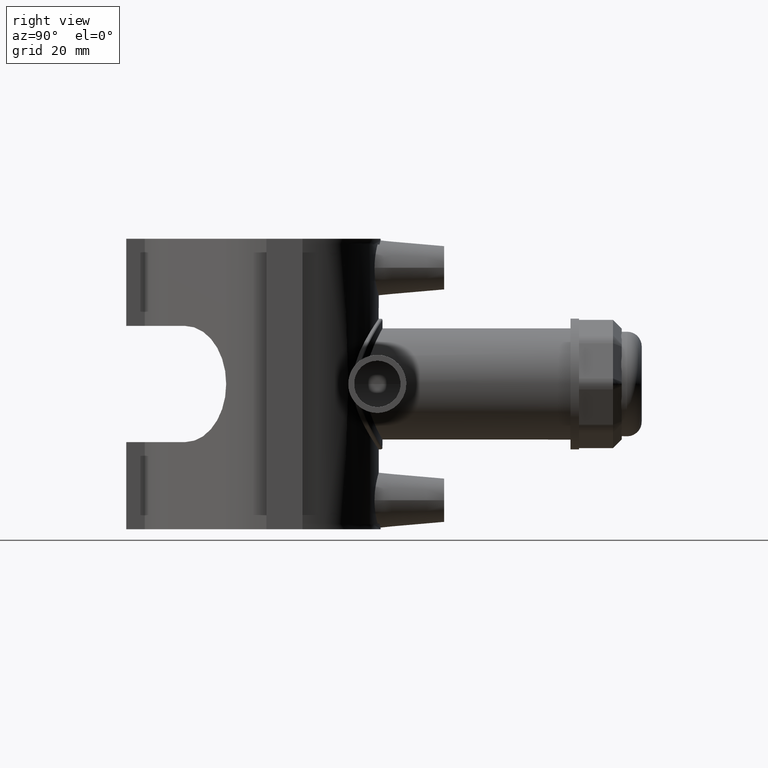
[diagram: clean part render]
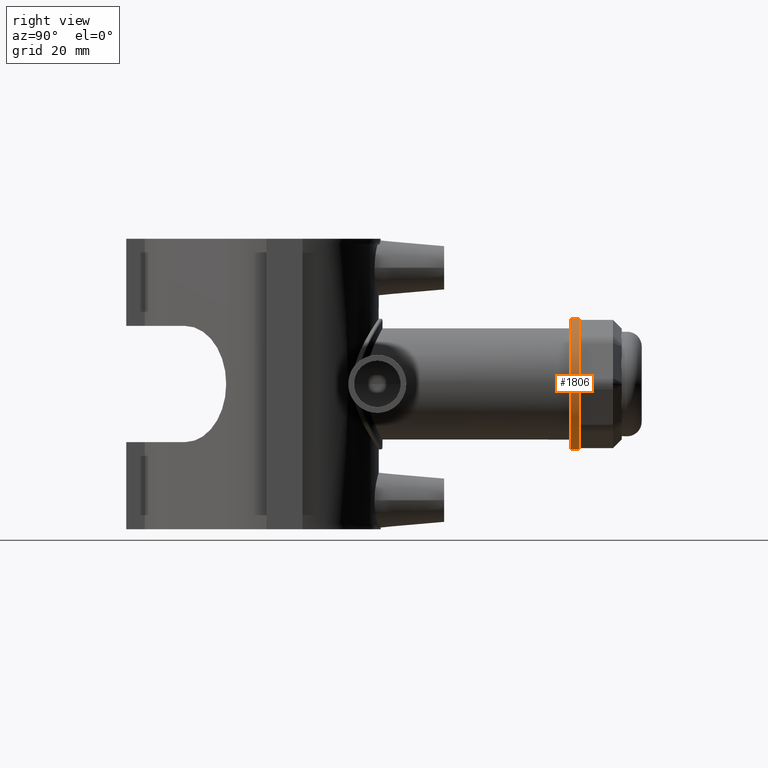
[diagram: same view with one face highlighted and labeled with its STEP entity id]
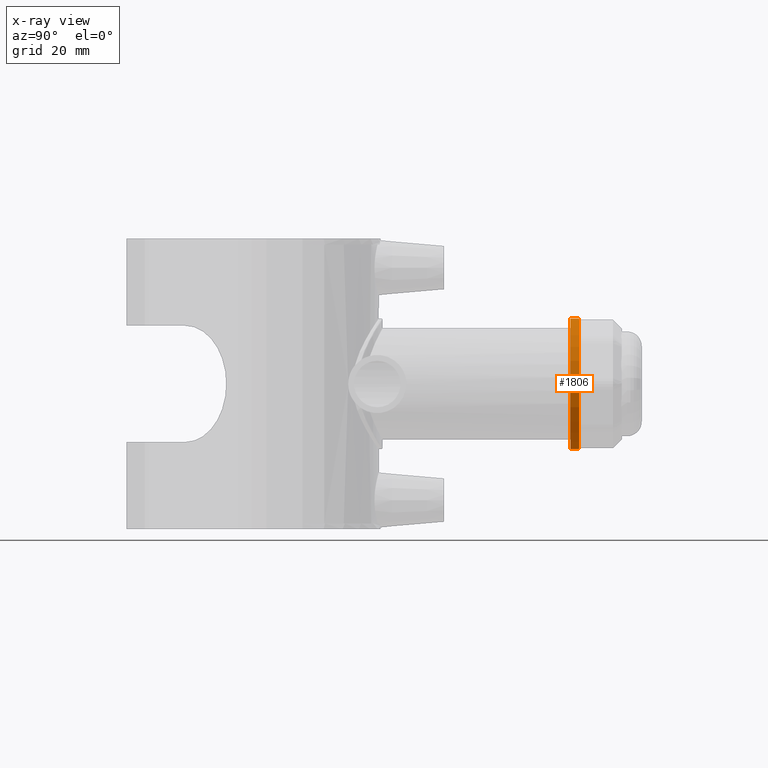
[diagram: x-ray of the same camera — body ghosted, the highlighted face saturated]
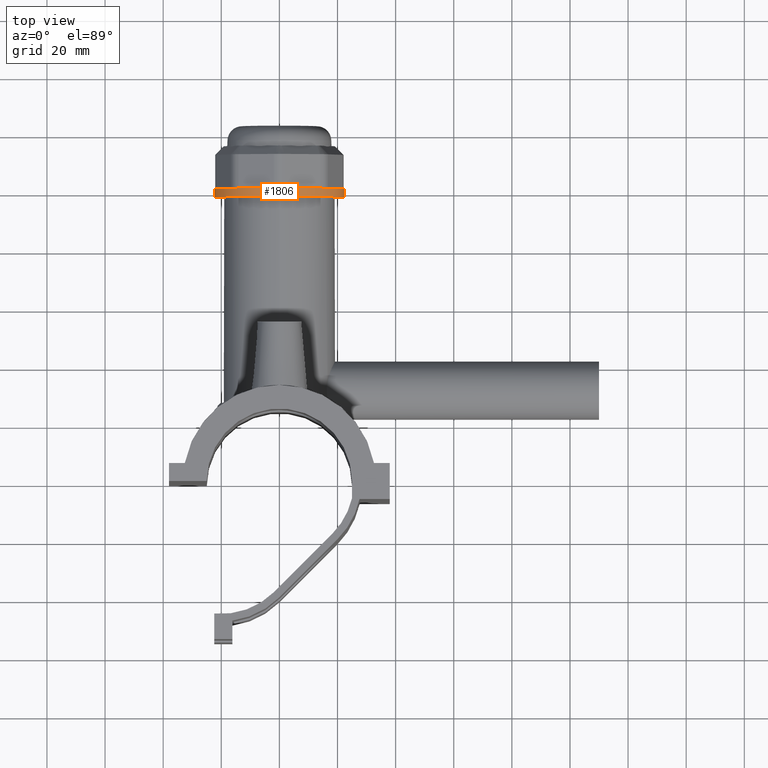
[diagram: same view with one face highlighted and labeled with its STEP entity id]
A machine part, right view. The second image highlights one B-rep face of the part: STEP entity #1806.
The next image is the same camera in x-ray: the body ghosted, the highlighted face saturated — about 0% of this face is hidden behind the body in this view.
A second angle (top view) of the same face is appended — the face is thin or edge-on in the first view.
In plain terms, the highlighted cylindrical surface (bore or boss wall) has radius 22.5 mm, axis along (0, 1, 0).
Its self-contained STEP definition (entity closure, byte-faithful):
#340=FACE_BOUND('',#585,.T.);
#391=CYLINDRICAL_SURFACE('',#1970,22.5);
#463=FACE_OUTER_BOUND('',#584,.T.);
#584=EDGE_LOOP('',(#1411));
#585=EDGE_LOOP('',(#1412));
#695=CIRCLE('',#1967,22.5);
#696=CIRCLE('',#1969,22.5);
#819=VERTEX_POINT('',#3103);
#820=VERTEX_POINT('',#3106);
#1036=EDGE_CURVE('',#819,#819,#695,.T.);
#1037=EDGE_CURVE('',#820,#820,#696,.T.);
#1411=ORIENTED_EDGE('',*,*,#1037,.T.);
#1412=ORIENTED_EDGE('',*,*,#1036,.F.);
#1806=ADVANCED_FACE('',(#463,#340),#391,.T.);
#1967=AXIS2_PLACEMENT_3D('',#3104,#2333,#2334);
#1969=AXIS2_PLACEMENT_3D('',#3107,#2337,#2338);
#1970=AXIS2_PLACEMENT_3D('',#3108,#2339,#2340);
#2333=DIRECTION('center_axis',(0.,1.,3.06161699786838E-16));
#2334=DIRECTION('ref_axis',(1.,0.,0.));
#2337=DIRECTION('center_axis',(0.,1.,3.06161699786838E-16));
#2338=DIRECTION('ref_axis',(1.,0.,0.));
#2339=DIRECTION('center_axis',(0.,1.,3.06161699786838E-16));
#2340=DIRECTION('ref_axis',(0.,0.,1.));
#3103=CARTESIAN_POINT('',(0.,101.44,22.5));
#3104=CARTESIAN_POINT('Origin',(0.,101.44,2.34030003317059E-14));
#3106=CARTESIAN_POINT('',(0.,98.5,22.5));
#3107=CARTESIAN_POINT('Origin',(0.,98.5,2.25028849343326E-14));
#3108=CARTESIAN_POINT('Origin',(0.,99.97,2.29529426330193E-14));